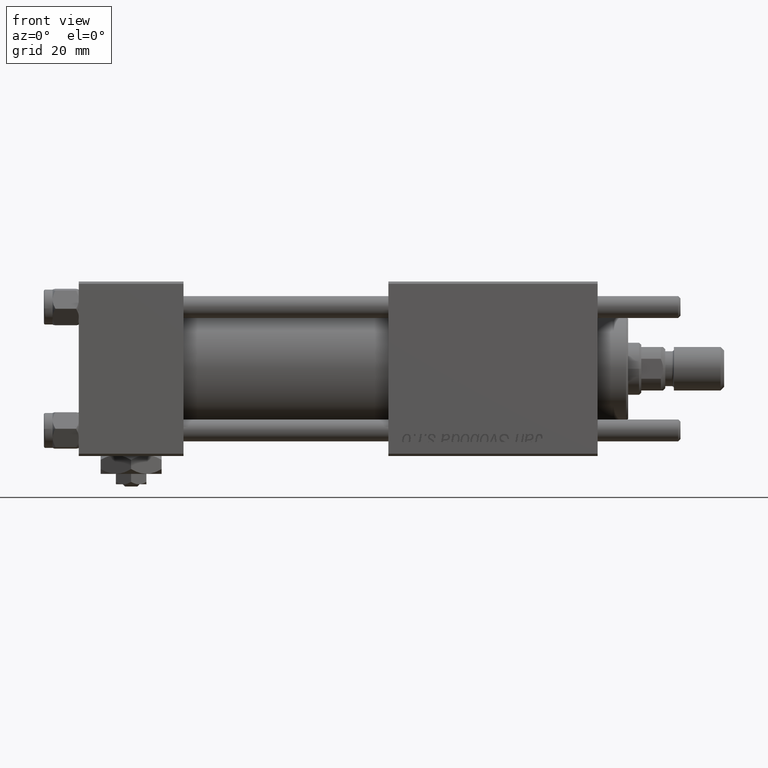
[diagram: clean part render]
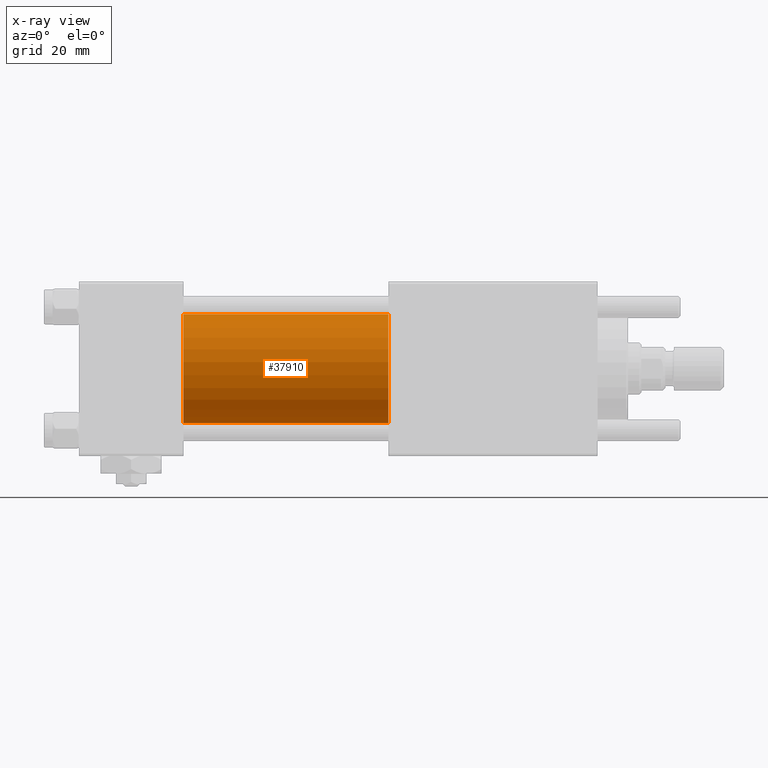
[diagram: x-ray — body ghosted, one internal face saturated and labeled with its STEP entity id]
A machine part, front view, then the same camera in x-ray: the body is ghosted and one INTERNAL B-rep face — a face not visible from any outside direction — is saturated and labeled: STEP entity #37910.
In plain terms, the highlighted cylindrical surface (partial cylindrical patch) has radius 12.5 mm, axis along (-1, -0, -0).
Its self-contained STEP definition (entity closure, byte-faithful):
#1464 = DIRECTION ( 'NONE',  ( 0.000000000000000000, 0.000000000000000000, -1.000000000000000000 ) ) ;
#1914 = EDGE_CURVE ( 'NONE', #21731, #55026, #35846, .T. ) ;
#3052 = DIRECTION ( 'NONE',  ( -1.000000000000000000, -0.000000000000000000, -0.000000000000000000 ) ) ;
#3344 = CARTESIAN_POINT ( 'NONE',  ( 71.00000000000001421, -1.071276715031019515E-15, -12.49999999999999645 ) ) ;
#7395 = AXIS2_PLACEMENT_3D ( 'NONE', #49058, #9597, #49361 ) ;
#8227 = DIRECTION ( 'NONE',  ( -1.000000000000000000, -0.000000000000000000, -0.000000000000000000 ) ) ;
#8887 = CARTESIAN_POINT ( 'NONE',  ( 24.00000000000000000, -1.071276715031019515E-15, -12.49999999999999645 ) ) ;
#9597 = DIRECTION ( 'NONE',  ( 1.000000000000000000, 0.000000000000000000, 0.000000000000000000 ) ) ;
#9676 = VECTOR ( 'NONE', #3052, 1000.000000000000000 ) ;
#10069 = CARTESIAN_POINT ( 'NONE',  ( 24.00000000000000000, -2.602085213965210642E-15, 12.49999999999999645 ) ) ;
#13417 = EDGE_LOOP ( 'NONE', ( #16335, #47034, #34728, #34587 ) ) ;
#13942 = EDGE_CURVE ( 'NONE', #41513, #46111, #33154, .T. ) ;
#16335 = ORIENTED_EDGE ( 'NONE', *, *, #13942, .T. ) ;
#16879 = DIRECTION ( 'NONE',  ( 0.000000000000000000, 0.000000000000000000, 1.000000000000000000 ) ) ;
#17703 = AXIS2_PLACEMENT_3D ( 'NONE', #49877, #22679, #1464 ) ;
#21731 = VERTEX_POINT ( 'NONE', #10069 ) ;
#22065 = DIRECTION ( 'NONE',  ( -1.000000000000000000, -0.000000000000000000, -0.000000000000000000 ) ) ;
#22679 = DIRECTION ( 'NONE',  ( 1.000000000000000000, 0.000000000000000000, 0.000000000000000000 ) ) ;
#23415 = CARTESIAN_POINT ( 'NONE',  ( 71.00000000000001421, -1.071276715031019515E-15, -12.49999999999999645 ) ) ;
#33154 = CIRCLE ( 'NONE', #7395, 12.49999999999999645 ) ;
#34483 = EDGE_CURVE ( 'NONE', #41513, #21731, #49557, .T. ) ;
#34587 = ORIENTED_EDGE ( 'NONE', *, *, #34483, .F. ) ;
#34728 = ORIENTED_EDGE ( 'NONE', *, *, #1914, .F. ) ;
#35846 = CIRCLE ( 'NONE', #17703, 12.49999999999999645 ) ;
#37910 = ADVANCED_FACE ( 'NONE', ( #39902 ), #58124, .F. ) ;
#39902 = FACE_OUTER_BOUND ( 'NONE', #13417, .T. ) ;
#41513 = VERTEX_POINT ( 'NONE', #46818 ) ;
#43395 = AXIS2_PLACEMENT_3D ( 'NONE', #49160, #8227, #16879 ) ;
#43988 = LINE ( 'NONE', #3344, #9676 ) ;
#44404 = EDGE_CURVE ( 'NONE', #46111, #55026, #43988, .T. ) ;
#46111 = VERTEX_POINT ( 'NONE', #23415 ) ;
#46818 = CARTESIAN_POINT ( 'NONE',  ( 71.00000000000001421, -2.602085213965210642E-15, 12.49999999999999645 ) ) ;
#47034 = ORIENTED_EDGE ( 'NONE', *, *, #44404, .T. ) ;
#49058 = CARTESIAN_POINT ( 'NONE',  ( 71.00000000000001421, -2.602085213965210642E-15, 0.000000000000000000 ) ) ;
#49160 = CARTESIAN_POINT ( 'NONE',  ( 71.00000000000001421, -2.602085213965210642E-15, 0.000000000000000000 ) ) ;
#49361 = DIRECTION ( 'NONE',  ( 0.000000000000000000, 0.000000000000000000, -1.000000000000000000 ) ) ;
#49557 = LINE ( 'NONE', #54045, #53743 ) ;
#49877 = CARTESIAN_POINT ( 'NONE',  ( 24.00000000000000000, -2.602085213965210642E-15, 0.000000000000000000 ) ) ;
#53743 = VECTOR ( 'NONE', #22065, 1000.000000000000000 ) ;
#54045 = CARTESIAN_POINT ( 'NONE',  ( 71.00000000000001421, -2.602085213965210642E-15, 12.49999999999999645 ) ) ;
#55026 = VERTEX_POINT ( 'NONE', #8887 ) ;
#58124 = CYLINDRICAL_SURFACE ( 'NONE', #43395, 12.49999999999999645 ) ;